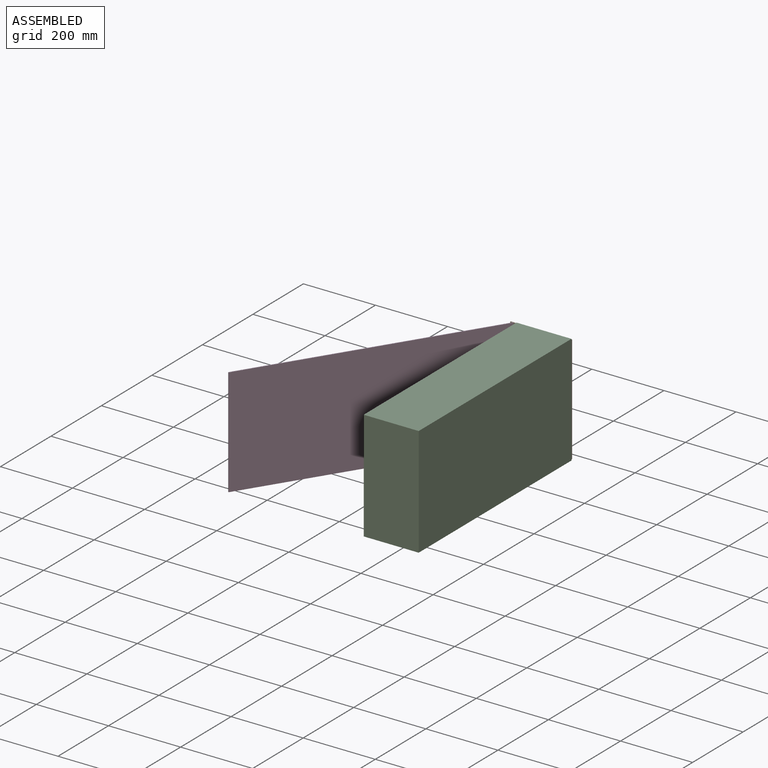
[diagram: assembled view]
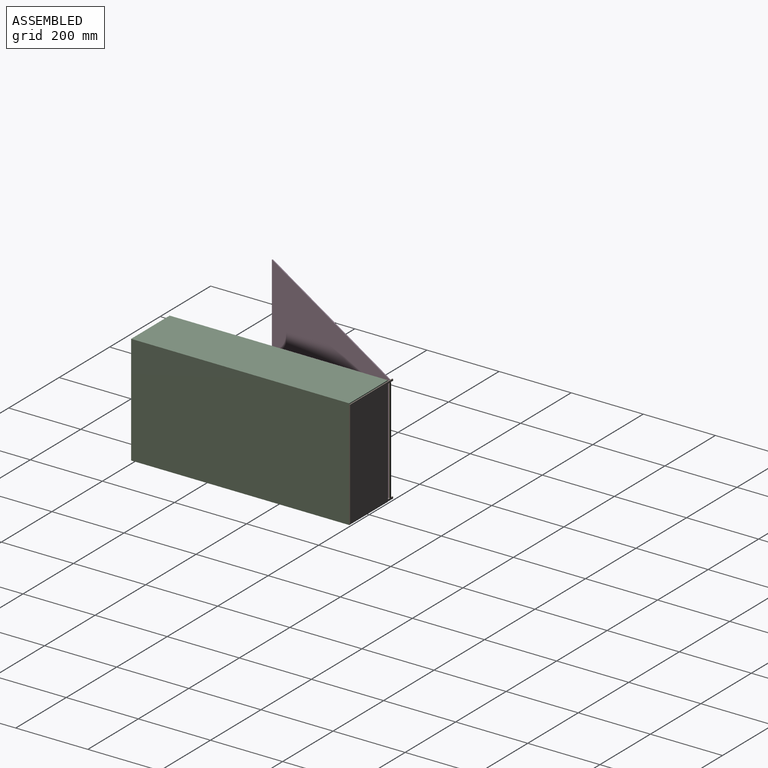
[diagram: assembled view, second angle]
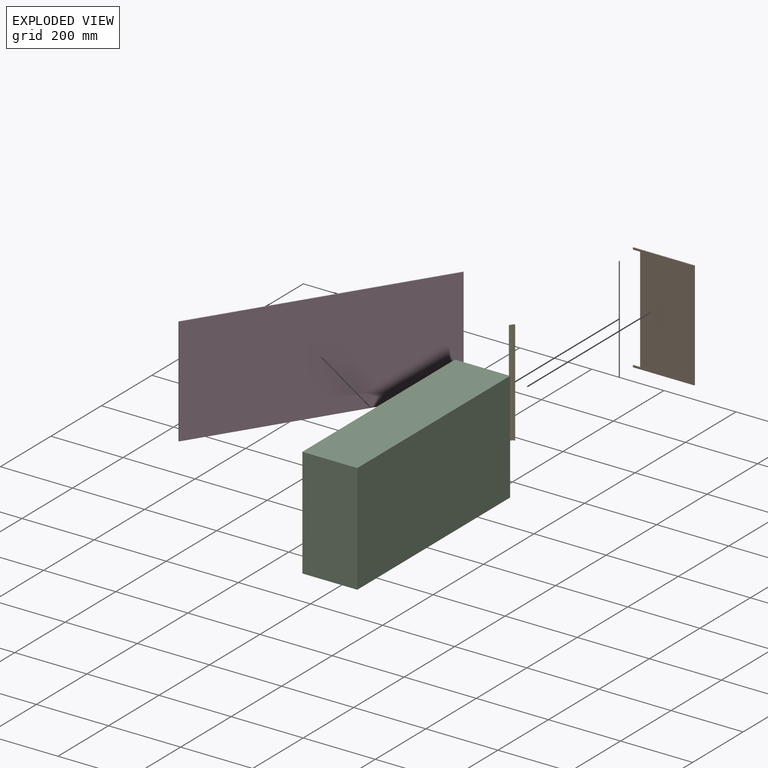
[diagram: exploded view]
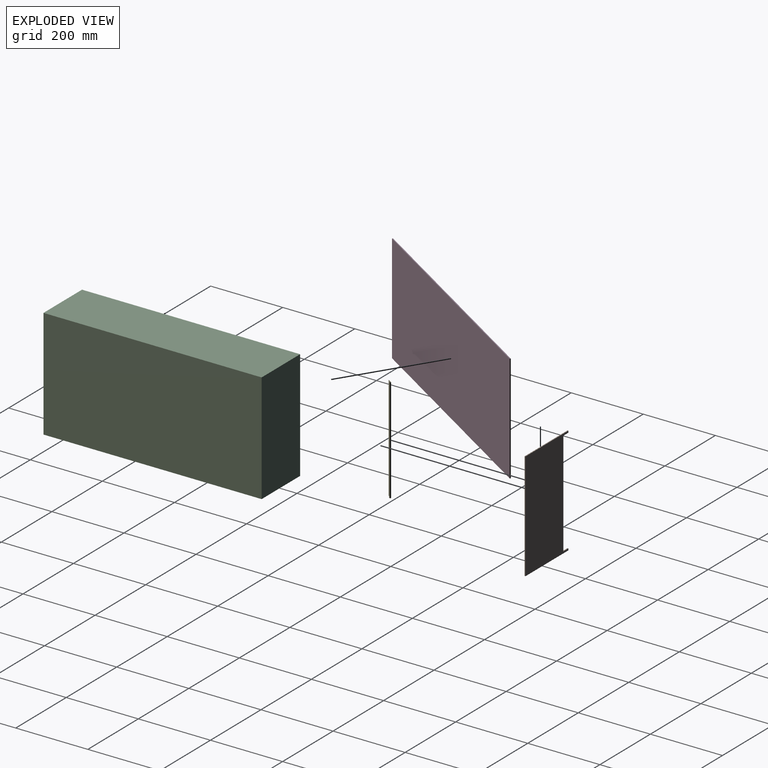
[diagram: exploded view, second angle]
ASSEMBLY  parts=5 mates=4
PART A: 3 faces, bbox 2.5x2.5x290 mm
  f0: cylinder r=1.25mm len=290mm, axis (0,0,-1), area 2277.7mm2, adj f1,f2
  f1: plane 2.5x2.5mm, normal (0,0,1), area 4.9mm2, adj f0
  f2: plane 2.5x2.5mm, normal (0,0,-1), area 4.9mm2, adj f0
PART B: 10 faces, bbox 300x2.5x170 mm
  f0: plane 5x2.5mm, normal (0,0,1), area 12.5mm2, adj f1,f3,f4,f8
  f1: plane 300x170mm, normal (0,-1,0), area 45200mm2, adj f0,f2,f3,f5,f6,f7,f8,f9
  f2: plane 170x2.5mm, normal (-1,0,0), area 425mm2, adj f1,f4,f5,f6
  f3: plane 170x2.5mm, normal (1,0,0), area 425mm2, adj f0,f1,f4,f6
  f4: plane 300x170mm, normal (0,1,0), area 45200mm2, adj f0,f2,f3,f5,f6,f7,f8,f9
  f5: plane 5x2.5mm, normal (0,0,1), area 12.5mm2, adj f1,f2,f4,f9
  f6: plane 300x2.5mm, normal (0,0,-1), area 750mm2, adj f1,f2,f3,f4
  f7: plane 290x2.5mm, normal (0,0,1), area 725mm2, adj f1,f4,f8,f9
  f8: plane 20x2.5mm, normal (-1,0,0), area 50mm2, adj f0,f1,f4,f7
  f9: plane 20x2.5mm, normal (1,0,0), area 50mm2, adj f1,f4,f5,f7
PART C: 11 faces, bbox 305x605x152.5 mm
  f0: plane 605x305mm, normal (0,0,-1), area 4525mm2, adj f1,f2,f3,f4,f6,f7,f8,f9
  f1: plane 305x152.5mm, normal (0,1,0), area 46512.5mm2, adj f0,f2,f4,f5
  f2: plane 605x152.5mm, normal (-1,0,0), area 92262.5mm2, adj f0,f1,f3,f5
  f3: plane 305x152.5mm, normal (0,-1,0), area 46512.5mm2, adj f0,f2,f4,f5
  f4: plane 605x152.5mm, normal (1,0,0), area 92262.5mm2, adj f0,f1,f3,f5
  f5: plane 605x305mm, normal (0,0,1), area 184525mm2, adj f1,f2,f3,f4
  f6: plane 300x150mm, normal (0,-1,0), area 45000mm2, adj f0,f7,f9,f10
  f7: plane 600x150mm, normal (1,0,0), area 90000mm2, adj f0,f6,f8,f10
  f8: plane 300x150mm, normal (0,1,0), area 45000mm2, adj f0,f7,f9,f10
  f9: plane 600x150mm, normal (-1,0,0), area 90000mm2, adj f0,f6,f8,f10
  f10: plane 600x300mm, normal (0,0,-1), area 180000mm2, adj f6,f7,f8,f9
PART D: 6 faces, bbox 300x2.5x700 mm
  f0: plane 700x2.5mm, normal (-1,0,0), area 1750mm2, adj f1,f3,f4,f5
  f1: plane 700x300mm, normal (0,-1,0), area 210000mm2, adj f0,f2,f4,f5
  f2: plane 700x2.5mm, normal (1,0,0), area 1750mm2, adj f1,f3,f4,f5
  f3: plane 700x300mm, normal (0,1,0), area 210000mm2, adj f0,f2,f4,f5
  f4: plane 300x2.5mm, normal (0,0,1), area 750mm2, adj f0,f1,f2,f3
  f5: plane 300x2.5mm, normal (0,0,-1), area 750mm2, adj f0,f1,f2,f3
PART E: 7 faces, bbox 4.5x14.1x290 mm
  f0: cylinder r=2.25mm len=290mm, axis (0,0,-1), area 3459.2mm2, adj f1,f4,f5,f6
  f1: plane 290x10mm, normal (1,0,0), area 2900mm2, adj f0,f2,f5,f6
  f2: plane 290x1mm, normal (0,1,0), area 290mm2, adj f1,f4,f5,f6
  f3: cylinder r=1.25mm len=290mm, axis (0,0,-1), area 2277.7mm2, adj f5,f6
  f4: plane 290x11.87mm, normal (-1,0,0), area 3442.5mm2, adj f0,f2,f5,f6
  f5: plane 14.12x4.5mm, normal (0,0,1), area 21.6mm2, adj f0,f1,f2,f3,f4
  f6: plane 14.12x4.5mm, normal (0,0,-1), area 21.6mm2, adj f0,f1,f2,f3,f4
PLACE A rot(axis=(1,0,0),180deg) t=(347.41,817.67,1059.36)mm
PLACE B rot(axis=(0,-1,0),90deg) t=(445.84,753.25,779.91)mm
PLACE C rot(axis=(-0.71,0,-0.71),180deg) t=(293.34,633.12,387.34)mm fixed
PLACE D rot(axis=(0.43,-0.79,0.43),103.4deg) t=(266.84,808.29,783.96)mm
PLACE E rot(axis=(0.96,-0.28,0),180deg) t=(357.14,795.7,1059.36)mm
MATE fastened D.f3 <-> E.f4  axis (-0.84,0.54,0) through (280.25,793.81,914.36)mm
MATE revolute A.f0 <-> E.f0  axis (0,0,1) through (285.84,798.39,769.36)mm
MATE fastened A.f0 <-> B.f9  axis (0,0,-1) through (285.84,798.39,769.36)mm
MATE fastened C.f3 <-> B.f1  axis (0,1,0) through (440.84,797.14,914.36)mm
